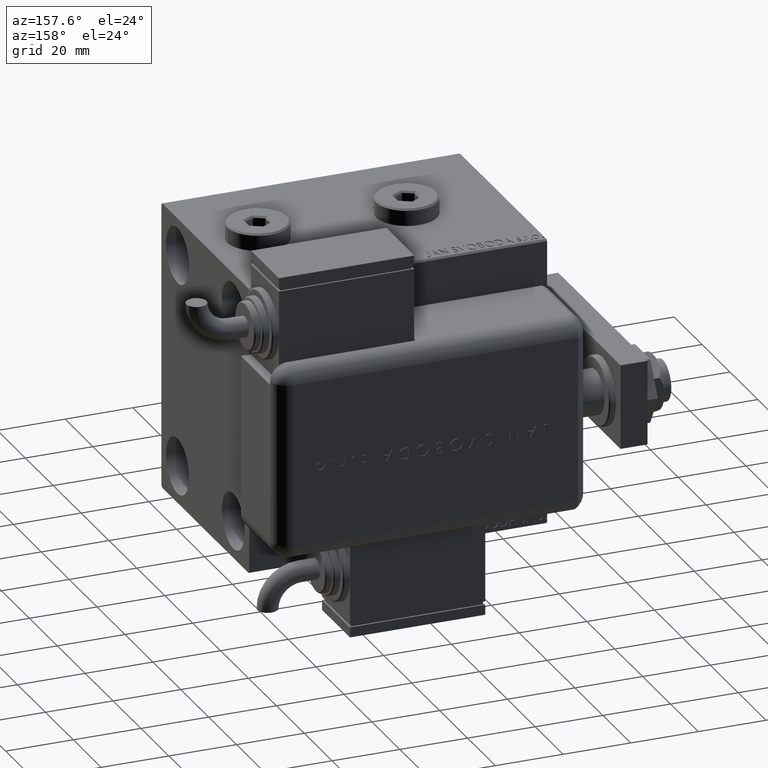
[diagram: clean part render]
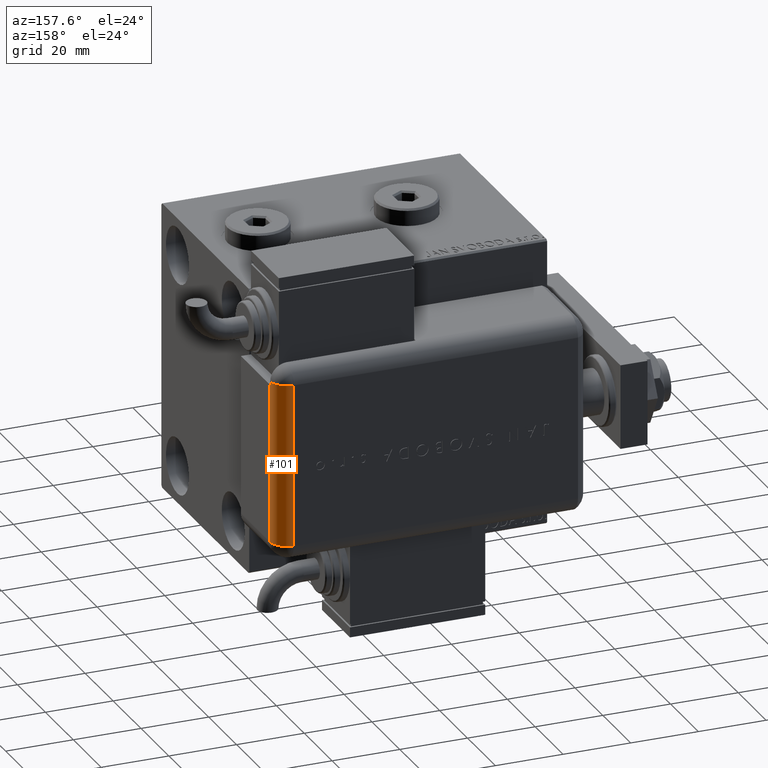
[diagram: same view with one face highlighted and labeled with its STEP entity id]
A machine part, auxiliary view. The second image highlights one B-rep face of the part: STEP entity #101.
In plain terms, the highlighted cylindrical surface (edge-blend (fillet) strip) has radius 5 mm, axis along (0, 0, 1).
Its self-contained STEP definition (entity closure, byte-faithful):
#101 = ADVANCED_FACE ( 'NONE', ( #26067 ), #54138, .T. ) ;
#1513 = CARTESIAN_POINT ( 'NONE',  ( 23.99999999999999289, 20.79999999999998295, 0.000000000000000000 ) ) ;
#3256 = CIRCLE ( 'NONE', #25877, 5.000000000000000000 ) ;
#3956 = EDGE_CURVE ( 'NONE', #4953, #51274, #7373, .T. ) ;
#4007 = DIRECTION ( 'NONE',  ( 1.000000000000000000, -0.000000000000000000, 0.000000000000000000 ) ) ;
#4953 = VERTEX_POINT ( 'NONE', #24707 ) ;
#7099 = ORIENTED_EDGE ( 'NONE', *, *, #29111, .T. ) ;
#7373 = LINE ( 'NONE', #1513, #7459 ) ;
#7459 = VECTOR ( 'NONE', #39451, 1000.000000000000000 ) ;
#8193 = DIRECTION ( 'NONE',  ( -1.000000000000000000, -0.000000000000000000, 0.000000000000000000 ) ) ;
#9818 = AXIS2_PLACEMENT_3D ( 'NONE', #50576, #4007, #14193 ) ;
#11091 = CARTESIAN_POINT ( 'NONE',  ( 23.99999999999999289, 21.00000000000000000, 0.004001601281283882067 ) ) ;
#11293 = CARTESIAN_POINT ( 'NONE',  ( -28.99999999999999645, 20.79999999999998295, 5.000000000000004441 ) ) ;
#11918 = DIRECTION ( 'NONE',  ( 1.000000000000000000, 0.000000000000000000, 0.000000000000000000 ) ) ;
#13262 = LINE ( 'NONE', #32963, #33935 ) ;
#14098 = CARTESIAN_POINT ( 'NONE',  ( -23.99999999999999645, 25.79999999999998295, 5.000000000000004441 ) ) ;
#14193 = DIRECTION ( 'NONE',  ( 0.000000000000000000, 0.000000000000000000, -1.000000000000000000 ) ) ;
#14453 = ORIENTED_EDGE ( 'NONE', *, *, #21064, .F. ) ;
#16080 = EDGE_LOOP ( 'NONE', ( #19293, #48895, #39849, #7099, #14453, #36952 ) ) ;
#18710 = LINE ( 'NONE', #14098, #28339 ) ;
#19293 = ORIENTED_EDGE ( 'NONE', *, *, #57477, .F. ) ;
#21064 = EDGE_CURVE ( 'NONE', #58328, #50372, #18710, .T. ) ;
#21488 = DIRECTION ( 'NONE',  ( 1.000000000000000000, -0.000000000000000000, 0.000000000000000000 ) ) ;
#22809 = DIRECTION ( 'NONE',  ( 1.000000000000000000, 0.000000000000000000, 0.000000000000000000 ) ) ;
#23861 = CARTESIAN_POINT ( 'NONE',  ( 23.99999999999999289, 25.79999999999998295, 5.000000000000004441 ) ) ;
#24707 = CARTESIAN_POINT ( 'NONE',  ( -23.99999999999999645, 20.79999999999998295, 0.000000000000000000 ) ) ;
#25877 = AXIS2_PLACEMENT_3D ( 'NONE', #35968, #21488, #49249 ) ;
#26067 = FACE_OUTER_BOUND ( 'NONE', #16080, .T. ) ;
#27520 = CIRCLE ( 'NONE', #9818, 5.000000000000000000 ) ;
#28339 = VECTOR ( 'NONE', #42468, 1000.000000000000000 ) ;
#29111 = EDGE_CURVE ( 'NONE', #4953, #50372, #27520, .T. ) ;
#30089 = DIRECTION ( 'NONE',  ( 0.000000000000000000, 0.000000000000000000, -1.000000000000000000 ) ) ;
#32963 = CARTESIAN_POINT ( 'NONE',  ( -28.99999999999999645, 21.00000000000000000, 0.004001601281286050471 ) ) ;
#33903 = CARTESIAN_POINT ( 'NONE',  ( 23.00000000000000000, 21.00000000000000000, 0.004001601281286050471 ) ) ;
#33935 = VECTOR ( 'NONE', #22809, 1000.000000000000000 ) ;
#34682 = CIRCLE ( 'NONE', #52399, 5.000000000000000000 ) ;
#35968 = CARTESIAN_POINT ( 'NONE',  ( 23.99999999999999289, 20.79999999999998295, 5.000000000000000000 ) ) ;
#36186 = CARTESIAN_POINT ( 'NONE',  ( 23.00000000000000000, 20.79999999999998295, 1.734723475976807094E-15 ) ) ;
#36952 = ORIENTED_EDGE ( 'NONE', *, *, #53640, .F. ) ;
#39451 = DIRECTION ( 'NONE',  ( 1.000000000000000000, -0.000000000000000000, -0.000000000000000000 ) ) ;
#39849 = ORIENTED_EDGE ( 'NONE', *, *, #3956, .F. ) ;
#41494 = DIRECTION ( 'NONE',  ( 0.000000000000000000, 1.526556658859590243E-14, -1.000000000000000000 ) ) ;
#42468 = DIRECTION ( 'NONE',  ( -1.000000000000000000, 0.000000000000000000, 0.000000000000000000 ) ) ;
#48837 = CARTESIAN_POINT ( 'NONE',  ( -23.99999999999999645, 25.79999999999998295, 5.000000000000004441 ) ) ;
#48895 = ORIENTED_EDGE ( 'NONE', *, *, #50993, .T. ) ;
#49249 = DIRECTION ( 'NONE',  ( 0.000000000000000000, 0.000000000000000000, -1.000000000000000000 ) ) ;
#50372 = VERTEX_POINT ( 'NONE', #48837 ) ;
#50576 = CARTESIAN_POINT ( 'NONE',  ( -23.99999999999999645, 20.79999999999998295, 5.000000000000002665 ) ) ;
#50993 = EDGE_CURVE ( 'NONE', #52361, #51274, #34682, .T. ) ;
#51274 = VERTEX_POINT ( 'NONE', #36186 ) ;
#51355 = CARTESIAN_POINT ( 'NONE',  ( 23.00000000000000000, 20.79999999999998295, 5.000000000000004441 ) ) ;
#52361 = VERTEX_POINT ( 'NONE', #33903 ) ;
#52399 = AXIS2_PLACEMENT_3D ( 'NONE', #51355, #8193, #41494 ) ;
#53640 = EDGE_CURVE ( 'NONE', #60842, #58328, #3256, .T. ) ;
#54138 = CYLINDRICAL_SURFACE ( 'NONE', #60466, 5.000000000000000000 ) ;
#57477 = EDGE_CURVE ( 'NONE', #52361, #60842, #13262, .T. ) ;
#58328 = VERTEX_POINT ( 'NONE', #23861 ) ;
#60466 = AXIS2_PLACEMENT_3D ( 'NONE', #11293, #11918, #30089 ) ;
#60842 = VERTEX_POINT ( 'NONE', #11091 ) ;